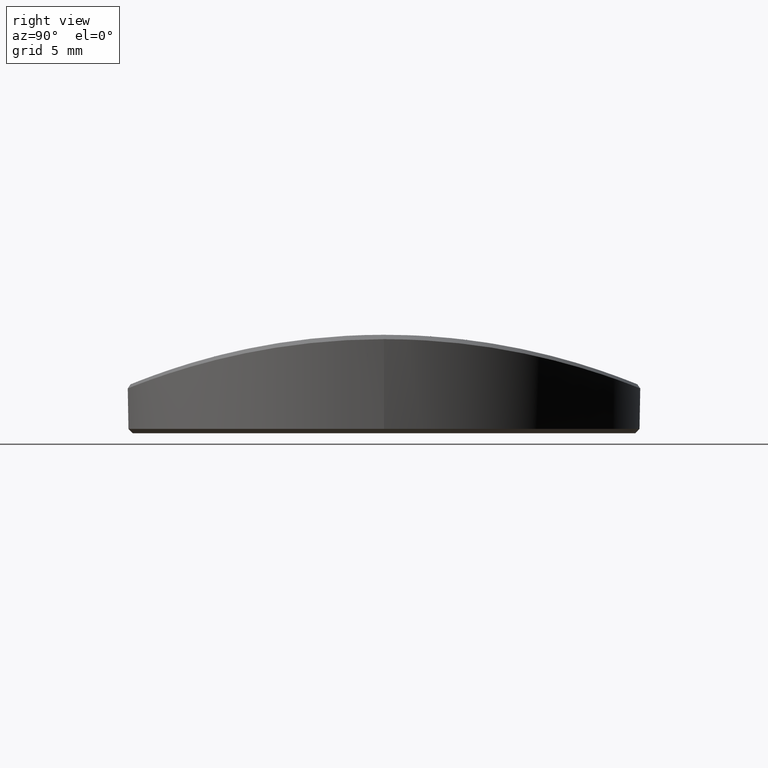
[diagram: clean part render]
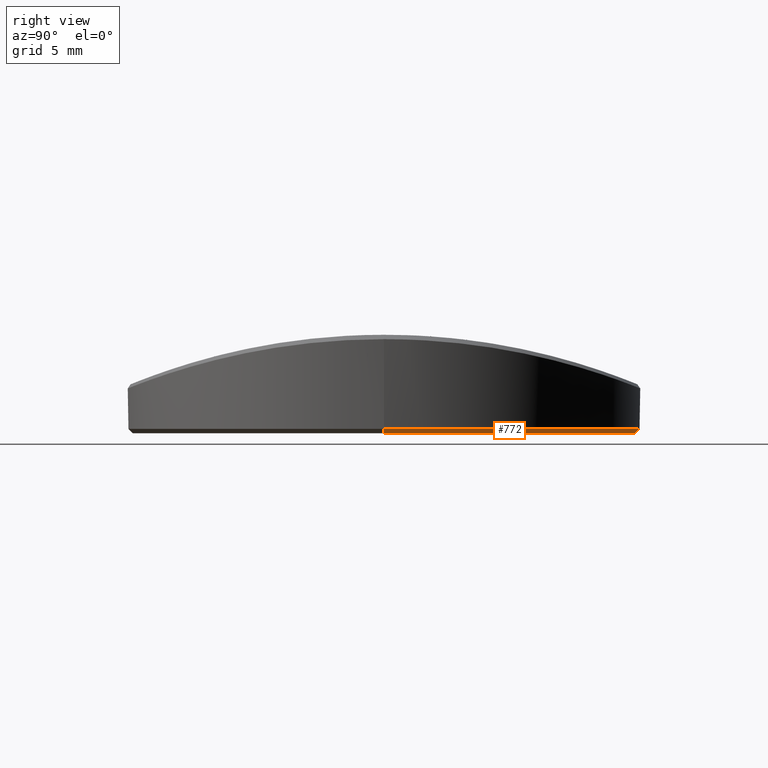
[diagram: same view with one face highlighted and labeled with its STEP entity id]
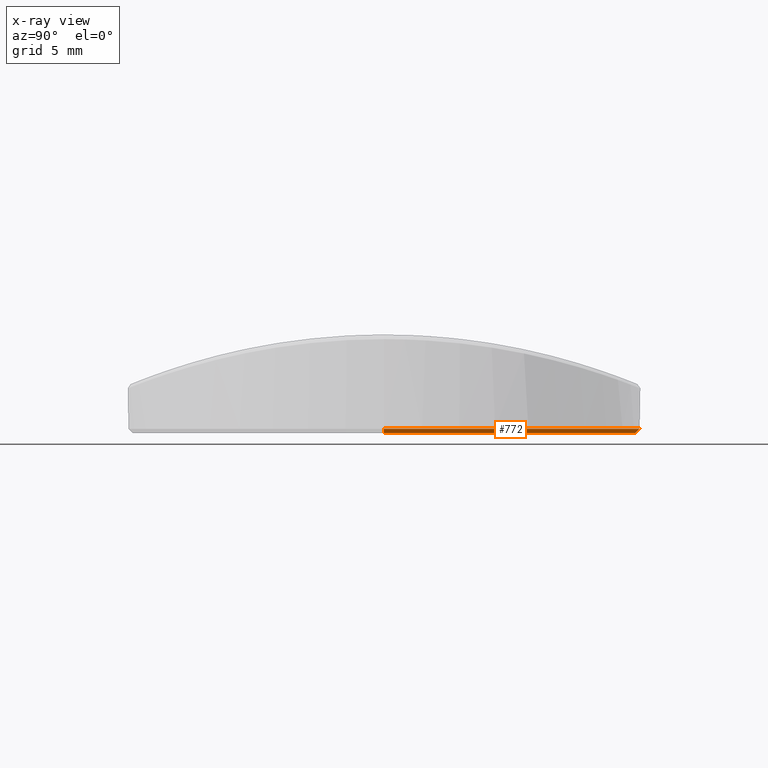
[diagram: x-ray of the same camera — body ghosted, the highlighted face saturated]
A machine part, right view. The second image highlights one B-rep face of the part: STEP entity #772.
The next image is the same camera in x-ray: the body ghosted, the highlighted face saturated — about 0% of this face is hidden behind the body in this view.
In plain terms, the highlighted conical surface has half-angle 45 deg.
Its self-contained STEP definition (entity closure, byte-faithful):
#25 = EDGE_CURVE ( 'NONE', #330, #2142, #1707, .T. ) ;
#70 = DIRECTION ( 'NONE',  ( 1.000000000000000000, 0.000000000000000000, 0.000000000000000000 ) ) ;
#168 = DIRECTION ( 'NONE',  ( 1.000000000000000000, 0.000000000000000000, 0.000000000000000000 ) ) ;
#222 = ORIENTED_EDGE ( 'NONE', *, *, #25, .T. ) ;
#330 = VERTEX_POINT ( 'NONE', #679 ) ;
#404 = VECTOR ( 'NONE', #1514, 1000.000000000000114 ) ;
#446 = VECTOR ( 'NONE', #2328, 1000.000000000000114 ) ;
#476 = CARTESIAN_POINT ( 'NONE',  ( 0.000000000000000000, 0.000000000000000000, 0.2000000000000040079 ) ) ;
#561 = CIRCLE ( 'NONE', #1710, 11.49999999999999645 ) ;
#562 = VERTEX_POINT ( 'NONE', #1835 ) ;
#679 = CARTESIAN_POINT ( 'NONE',  ( -11.49999999999999645, 1.420590287010929336E-15, 0.000000000000000000 ) ) ;
#772 = ADVANCED_FACE ( 'NONE', ( #1102 ), #2370, .T. ) ;
#937 = AXIS2_PLACEMENT_3D ( 'NONE', #1834, #1454, #70 ) ;
#947 = CARTESIAN_POINT ( 'NONE',  ( 0.000000000000000000, 0.000000000000000000, 0.000000000000000000 ) ) ;
#1028 = VERTEX_POINT ( 'NONE', #1136 ) ;
#1048 = EDGE_CURVE ( 'NONE', #330, #1028, #561, .T. ) ;
#1102 = FACE_OUTER_BOUND ( 'NONE', #1316, .T. ) ;
#1108 = ORIENTED_EDGE ( 'NONE', *, *, #2488, .F. ) ;
#1136 = CARTESIAN_POINT ( 'NONE',  ( 11.49999999999999645, 0.000000000000000000, 0.000000000000000000 ) ) ;
#1261 = AXIS2_PLACEMENT_3D ( 'NONE', #476, #2441, #2043 ) ;
#1302 = EDGE_CURVE ( 'NONE', #1028, #562, #1738, .T. ) ;
#1316 = EDGE_LOOP ( 'NONE', ( #2406, #222, #1108, #1731 ) ) ;
#1454 = DIRECTION ( 'NONE',  ( -0.000000000000000000, -0.000000000000000000, 1.000000000000000000 ) ) ;
#1514 = DIRECTION ( 'NONE',  ( -0.7071067811865443531, 8.659560562354895880E-17, 0.7071067811865506814 ) ) ;
#1541 = CARTESIAN_POINT ( 'NONE',  ( 11.69999999999999929, 0.000000000000000000, 0.2000000000000040079 ) ) ;
#1637 = CIRCLE ( 'NONE', #937, 11.69999999999999929 ) ;
#1707 = LINE ( 'NONE', #2495, #404 ) ;
#1710 = AXIS2_PLACEMENT_3D ( 'NONE', #947, #2512, #168 ) ;
#1731 = ORIENTED_EDGE ( 'NONE', *, *, #1302, .F. ) ;
#1738 = LINE ( 'NONE', #1541, #446 ) ;
#1834 = CARTESIAN_POINT ( 'NONE',  ( 0.000000000000000000, 0.000000000000000000, 0.2000000000000040079 ) ) ;
#1835 = CARTESIAN_POINT ( 'NONE',  ( 11.69999999999999929, 1.432836755002403087E-15, 0.2000000000000040079 ) ) ;
#2043 = DIRECTION ( 'NONE',  ( 1.000000000000000000, 0.000000000000000000, 0.000000000000000000 ) ) ;
#2142 = VERTEX_POINT ( 'NONE', #2218 ) ;
#2218 = CARTESIAN_POINT ( 'NONE',  ( -11.69999999999999929, 0.000000000000000000, 0.2000000000000040079 ) ) ;
#2328 = DIRECTION ( 'NONE',  ( 0.7071067811865443531, 0.000000000000000000, 0.7071067811865506814 ) ) ;
#2370 = CONICAL_SURFACE ( 'NONE', #1261, 11.69999999999999929, 0.7853981633974439491 ) ;
#2406 = ORIENTED_EDGE ( 'NONE', *, *, #1048, .F. ) ;
#2441 = DIRECTION ( 'NONE',  ( -0.000000000000000000, -0.000000000000000000, 1.000000000000000000 ) ) ;
#2488 = EDGE_CURVE ( 'NONE', #562, #2142, #1637, .T. ) ;
#2495 = CARTESIAN_POINT ( 'NONE',  ( -11.69999999999999929, 1.432836755002403087E-15, 0.2000000000000040079 ) ) ;
#2512 = DIRECTION ( 'NONE',  ( -0.000000000000000000, -0.000000000000000000, -1.000000000000000000 ) ) ;